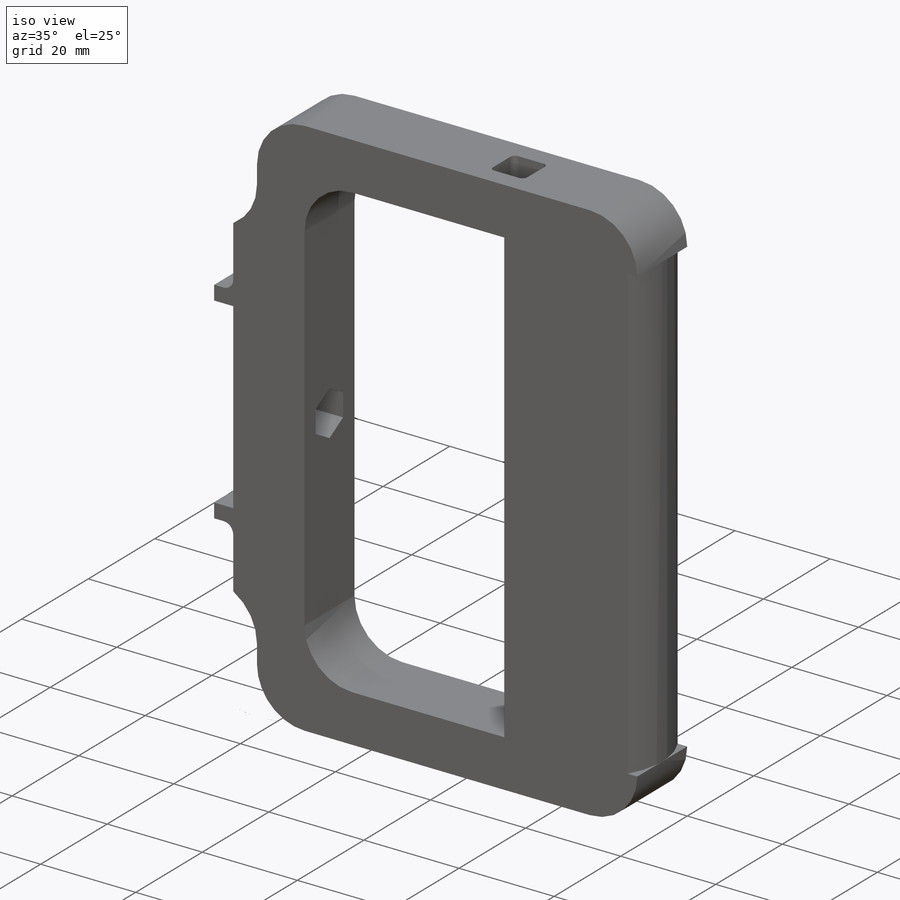
[diagram: iso view]
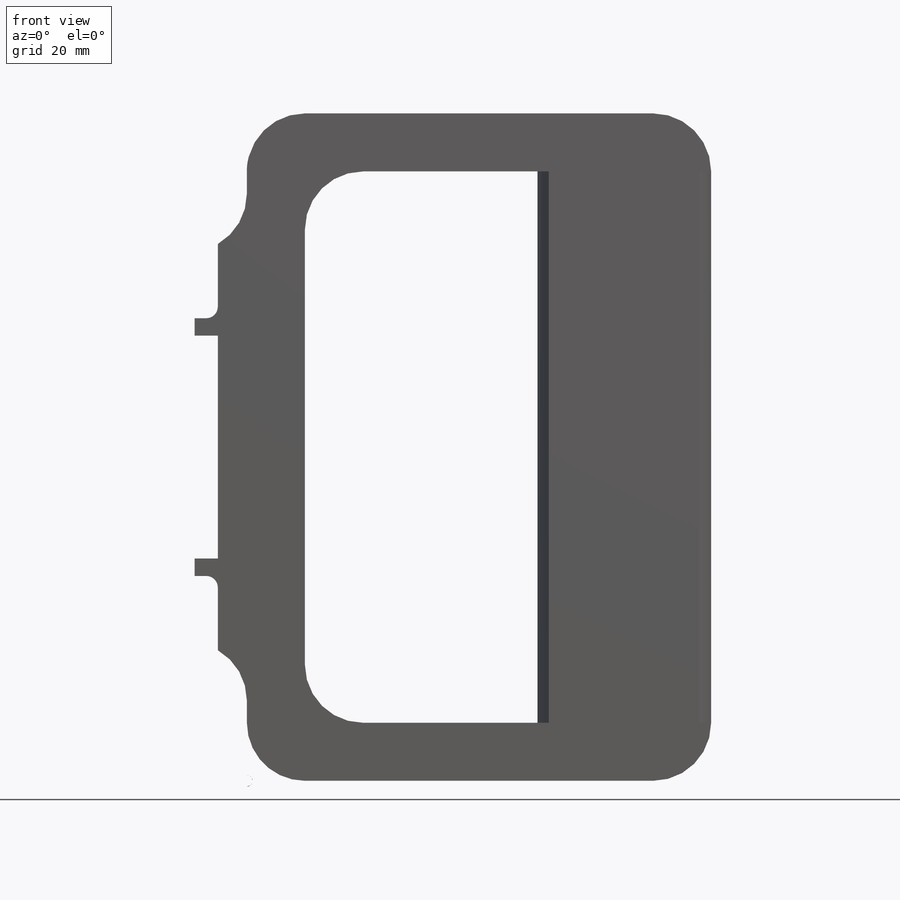
[diagram: front view]
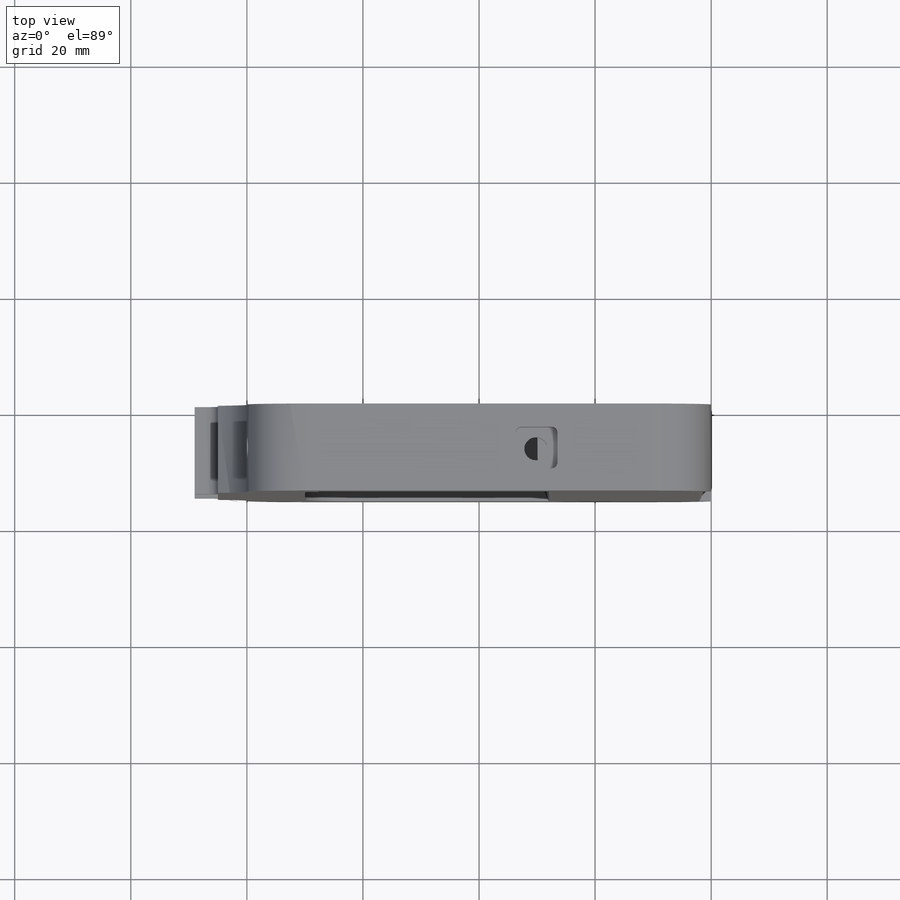
[diagram: top view]
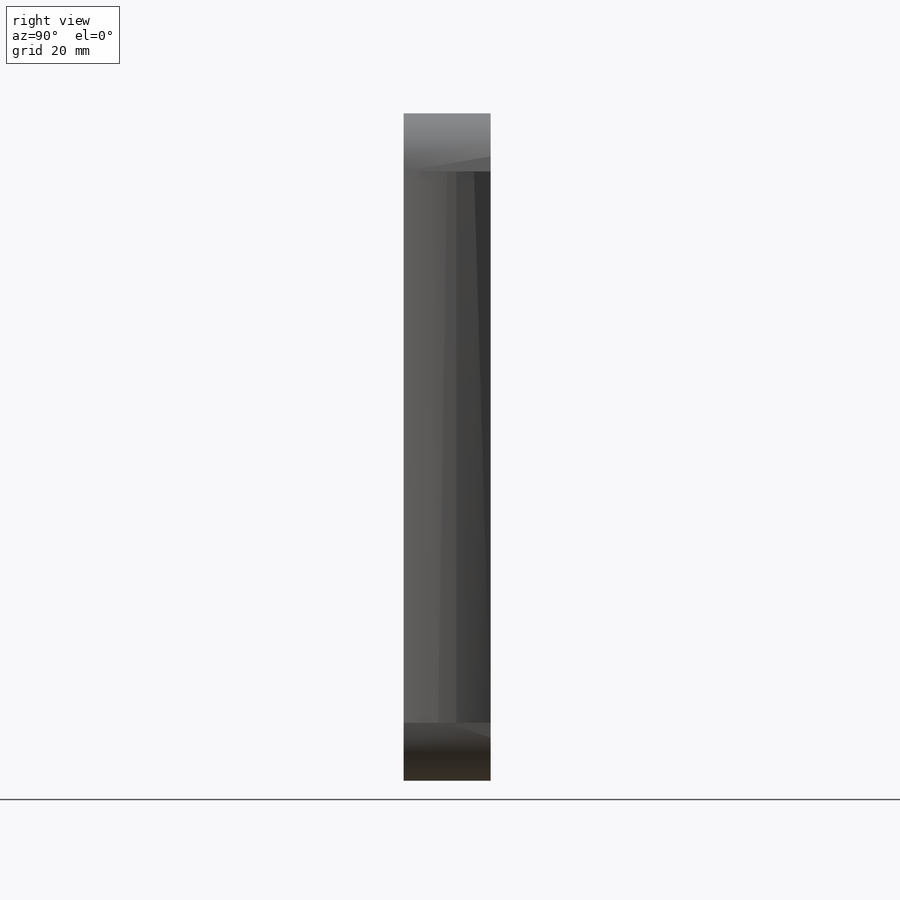
[diagram: right view]
SOLIDWORKS PART (.sldprt)
format: sldprt  version: not decoded by parser v0  size: 489,472 bytes
history: native  units: mm
features: sketch x9, cut_extrude x6, extrude x3, fillet x3, material x1, plane x1 (+12 scaffold rows collapsed)
feature tree (35):
  scaffold x12  (default folders/planes/origin — collapsed)
  material  "ABS"
  sketch  "Model"  dims[c1.D1=10.0mm c1.D2=10.0mm c1.D3=25.0mm c1.D4=10.0mm c1.D5=10.0mm c1.D6=30.0mm c1.D7=45.0mm c1.D8=90.0mm c1.D9=70.0mm c2.D6=10.0mm c2.D7=10.0mm c3.D6=70.0mm c3.D7=70.0mm c3.D10=20.0mm c3.D11=110.0mm c3.D8=22.5mm c4.D10=22.5mm c4.D11=~2381.273838mm c4.D12=~2396.273838mm c4.D13=~2406.273838mm c5.D11=~1086.446711mm c5.D12=~1096.446711mm c5.D13=~1191.446711mm c6.D11=~1191.446711mm c6.D3=5.0mm c7.D11=90.0mm c7.D2=10.0mm]
  extrude  "Main Body"  Depth=15mm
  sketch  "Sketch2"  dims[c1.D1=~3.580462mm c1.D3=5.45mm c1.D4=6.0mm c2.D1=10.0mm c2.D2=7.5mm c2.D5=50.0mm c2.D6=7.5mm c2.D7=10.0mm]
  cut_extrude  "M5 Hole"  [1 undecoded]
  sketch  "Sketch6"  dims[c1.D1=30.0mm c1.D3=~14.999998mm c1.D4=~14.999998mm c1.D5=15.0mm c1.D6=15.0mm c1.D8=15.0mm c2.D3=~14.999998mm c2.D4=15.0mm c2.D1=15.0mm c3.D1=15.0mm c3.D2=~17.761059mm c4.D1=~14.999998mm c4.D2=7.5mm c4.D3=~29.106497mm c4.D7=7.5mm c4.D8=15.0mm c4.D5=15.0mm c4.D9=~25.98076mm c4.D10=~25.98076mm c5.D5=~14.999998mm c5.D1=15.0mm]
  extrude  "Grip"  [1 undecoded]
  sketch  "Sketch8"  dims[c1.D1=7.0mm c1.D2=7.2mm c1.D3=7.0mm c2.D3=45.0deg c3.D3=26.5mm c3.D4=4.0mm]
  cut_extrude  "Button 1"  Depth=7mm
  sketch  "Sketch9"  dims[c1.D1=3.5mm c1.D2=3.5mm c2.D1=3.5mm c2.D2=3.5mm c2.D3=3.5mm]
  cut_extrude  "Hole Wires Button 1"  Depth=3mm
  fillet  "Outer Fillet"  Radius=10mm
  sketch  "Sketch13"  dims[c1.D1=7.0mm c1.D2=7.2mm c1.D3=3.0mm c1.D4=~37.009619mm c2.D3=3.0mm c2.D4=6.5mm]
  cut_extrude  "Button 2"  Depth=10mm
  fillet  "Buttons Fillet"  Radius=1mm
  plane  "Wire Routing Plane"
  sketch  "Sketch16"  dims[c1.D1=~1.968133mm c1.D2=4.0mm c2.D1=10.0mm c2.D3=7.5mm]
  cut_extrude  "Wire Routing"  Depth=80mm
  sketch  "Sketch17"  dims[c1.D3=10.0mm c1.D1=8.2mm c1.D2=10.0mm c2.D1=10.0mm c2.D2=10.0mm c2.D3=50.0mm c2.D4=7.5mm c2.D5=12.5mm c3.D1=~30.609786deg c3.D2=~33.159176deg]
  cut_extrude  "M5 Nut"  Depth=6mm
  sketch  "Sketch18"  dims[D1=3.0mm D2=3.0mm D3=38.4mm]
  extrude  "Dovetail Male Slot"  Depth=4mm
  fillet  "Dovetail Male Slot Fillet"  Radius=2mm
decode coverage: 19 of 21 modeling features carry decoded parameters
note: ~ marks probable driven/reference dimensions
note: 2 parameter values undecoded
note: suppression state not decoded; provenance and decode notes live in map.json
